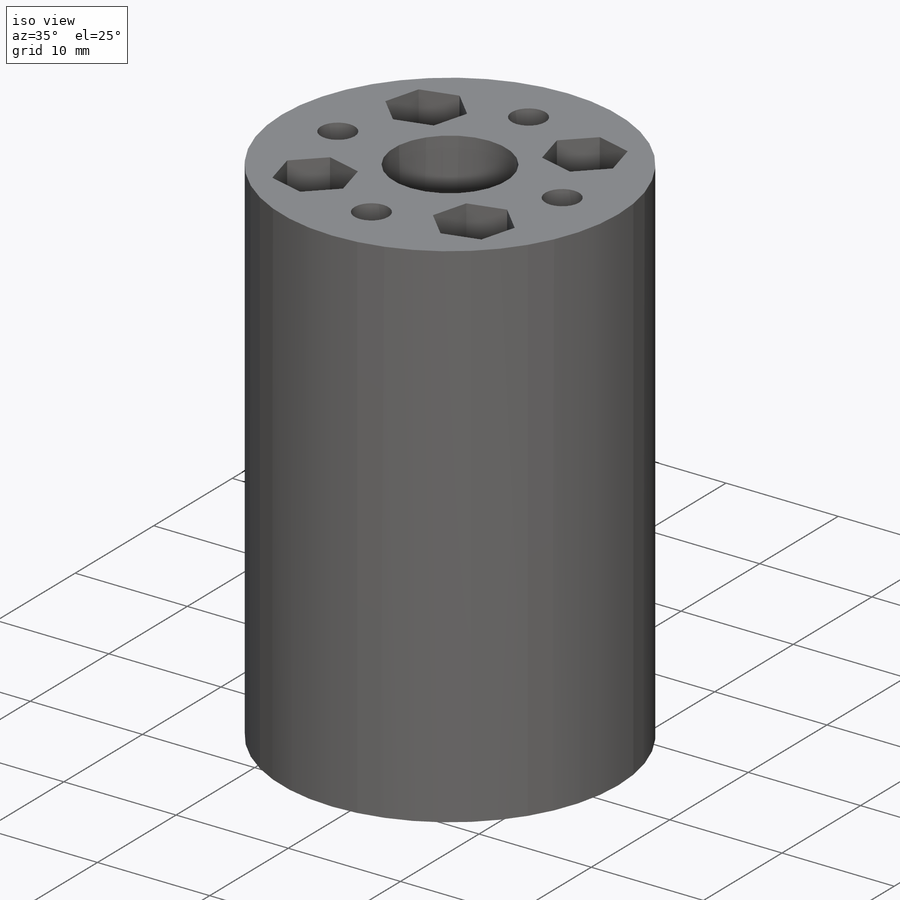
[diagram: iso view]
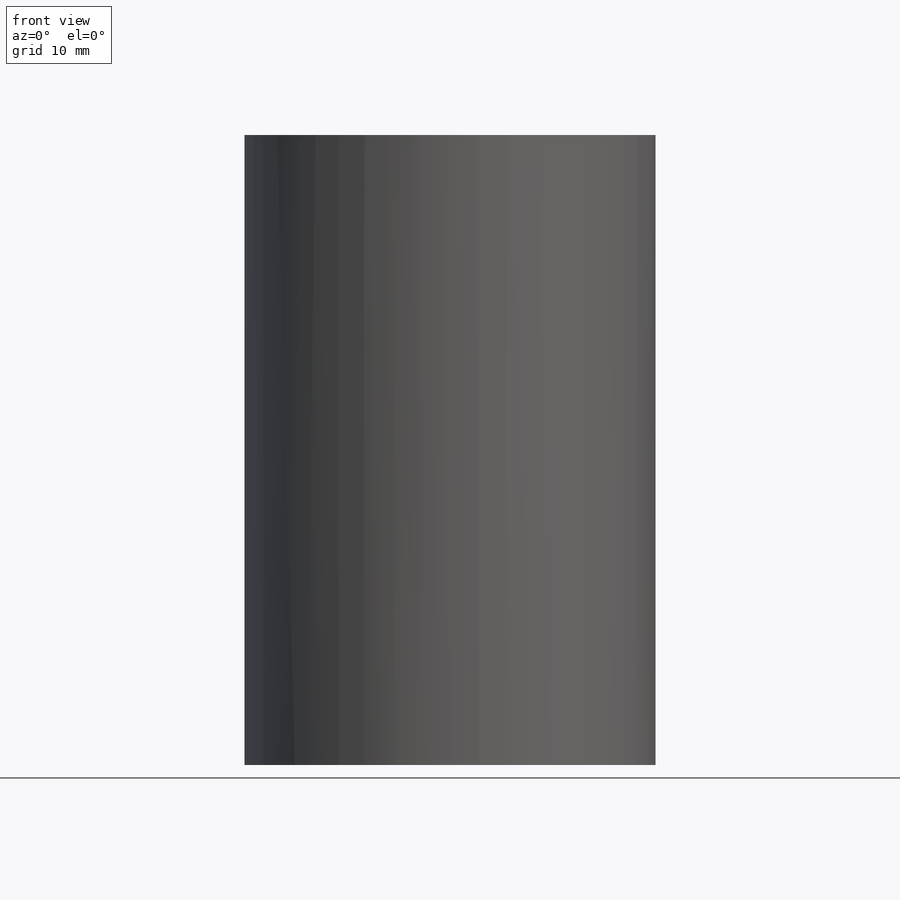
[diagram: front view]
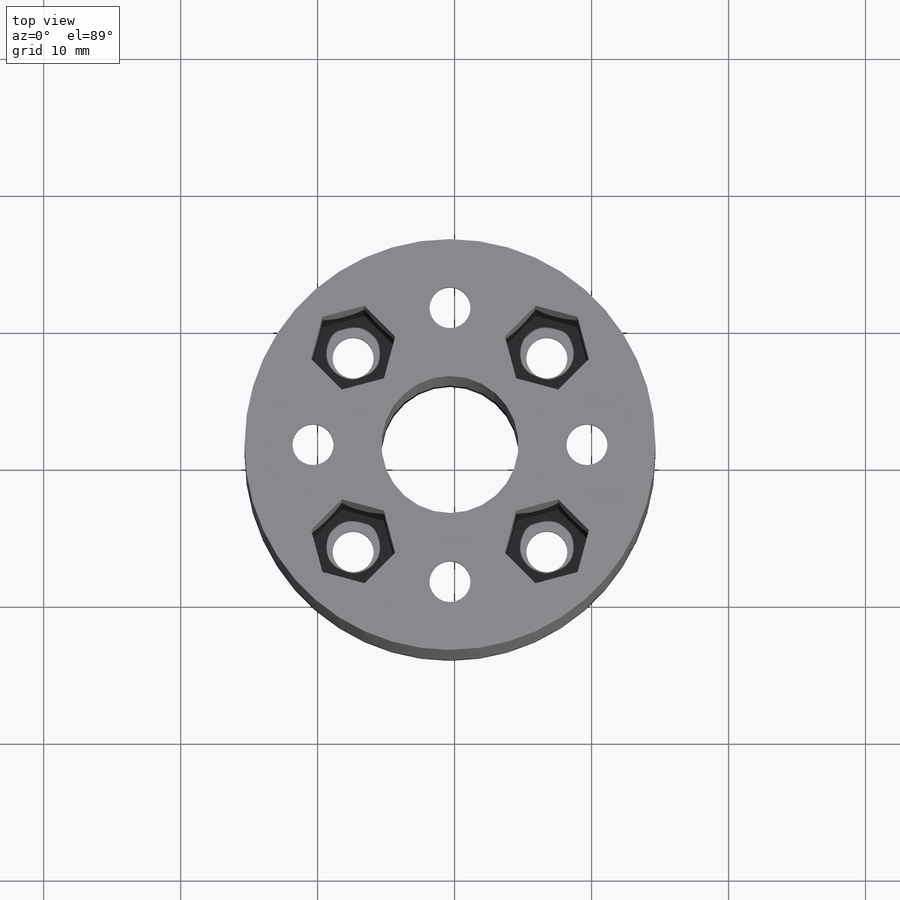
[diagram: top view]
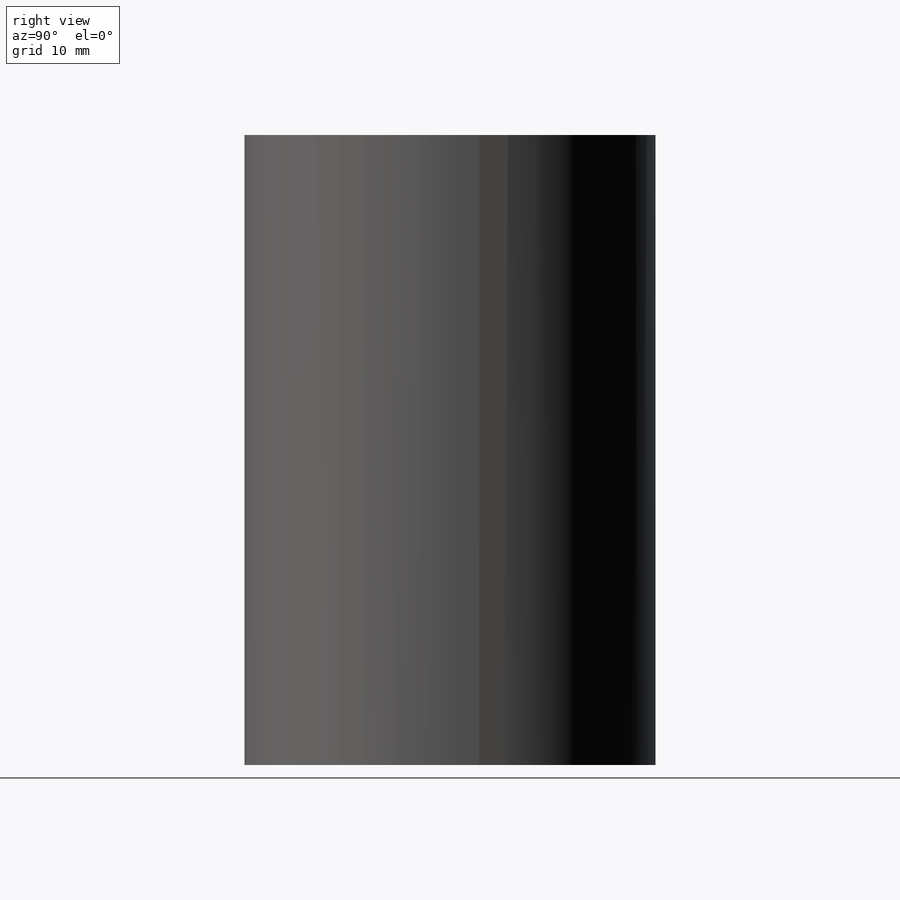
[diagram: right view]
SOLIDWORKS PART (.sldprt)
format: sldprt  version: not decoded by parser v0  size: 676,864 bytes
history: native  units: mm
features: sketch x25, extrude x13, cut_extrude x12, pattern_circular x7, plane x3, material x1 (+9 scaffold rows collapsed)
feature tree (70):
  scaffold x9  (default folders/planes/origin — collapsed)
  material  "材质 <未指定>"
  plane  "前视基准面"
  plane  "上视基准面"
  plane  "右视基准面"
  sketch  "草图1"  dims[c1.D3=30.0mm c1.D4=4.2mm c1.D5=4.2mm c1.D6=4.2mm c1.D7=4.2mm c1.D8=10.0mm c1.D9=7.0mm c1.D10=7.0mm c1.D11=7.0mm c1.D12=7.0mm c1.D1=34.0mm c1.D2=34.0mm c2.D8=34.0mm c2.D13=34.0mm]
  extrude  "凸台-拉伸4"  Depth=3mm
  sketch  "草图5"
  extrude  "凸台-拉伸5"  Depth=3mm
  pattern_circular  "阵列(圆周)2"  Count=4 Angle=360deg
  sketch  "草图6"  dims[D2=4.2mm D3=7.0mm D1=34.0mm D4=34.0mm]
  extrude  "凸台-拉伸6"  Depth=3mm
  pattern_circular  "阵列(圆周)3"  Count=4 Angle=360deg
  sketch  "草图7"
  extrude  "凸台-拉伸7"  Depth=46mm
  sketch  "草图8"  dims[D1=5.5mm]
  sketch  "草图9"
  cut_extrude  "切除-拉伸1"  Depth=46mm
  pattern_circular  "阵列(圆周)4"  Count=4 Angle=90deg
  sketch  "草图11"  dims[D1=3.0mm]
  cut_extrude  "切除-拉伸2"  Depth=3mm
  pattern_circular  "阵列(圆周)5"  Count=4 Angle=360deg
  sketch  "草图12"
  extrude  "凸台-拉伸8"  Depth=3mm
  sketch  "草图13"
  extrude  "凸台-拉伸9"  Depth=3mm
  sketch  "草图14"
  extrude  "凸台-拉伸10"  Depth=3mm
  sketch  "草图15"
  extrude  "凸台-拉伸11"  Depth=3mm
  sketch  "草图16"  dims[c1.D4=~2.744555mm c1.D1=5.375mm c1.D2=5.375mm c1.D3=1.5mm c2.D4=5.5mm c2.D5=5.5mm]
  sketch  "草图17"
  extrude  "凸台-拉伸13"  Depth=3mm
  sketch  "草图18"
  extrude  "凸台-拉伸14"  Depth=3mm
  cut_extrude  "切除-拉伸3"  Depth=2.5mm
  sketch  "草图19"  dims[D1=3.0mm]
  cut_extrude  "切除-拉伸4"  Depth=2.5mm
  sketch  "草图20"  dims[D1=3.0mm]
  cut_extrude  "切除-拉伸5"  Depth=2.5mm
  sketch  "草图21"  dims[D1=30.0mm D2=10.0mm]
  extrude  "凸台-拉伸15"  Depth=3mm
  sketch  "草图22"  dims[D2=3.0mm D1=10.0mm]
  cut_extrude  "切除-拉伸6"  Depth=3mm
  pattern_circular  "阵列(圆周)6"  Count=4 Angle=360deg
  extrude  "凸台-拉伸16"  Depth=3mm
  sketch  "草图24"
  cut_extrude  "切除-拉伸7"  Depth=3mm
  sketch  "草图25"
  extrude  "凸台-拉伸17"  Depth=43mm
  sketch  "草图27"
  cut_extrude  "切除-拉伸8"  Depth=46mm
  sketch  "草图28"  dims[D1=5.5mm D2=5.5mm D3=5.5mm D4=5.5mm]
  cut_extrude  "切除-拉伸9"  Depth=43mm
  sketch  "草图29"  dims[D2=3.0mm D1=10.0mm]
  cut_extrude  "切除-拉伸10"  Depth=46mm
  pattern_circular  "阵列(圆周)7"  Count=4 Angle=360deg
  sketch  "草图30"  dims[D1=5.5mm]
  cut_extrude  "切除-拉伸11"  Depth=43mm
  pattern_circular  "阵列(圆周)8"  Count=4 Angle=360deg
  sketch  "草图31"
  cut_extrude  "切除-拉伸12"  Depth=100mm
decode coverage: 44 of 57 modeling features carry decoded parameters
note: ~ marks probable driven/reference dimensions
note: suppression state not decoded; provenance and decode notes live in map.json
